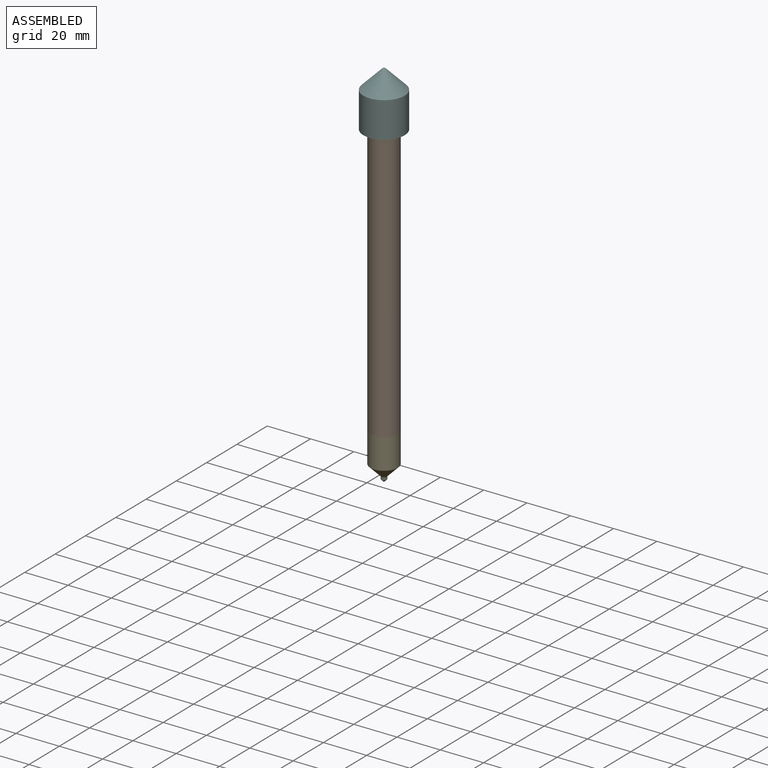
[diagram: assembled view]
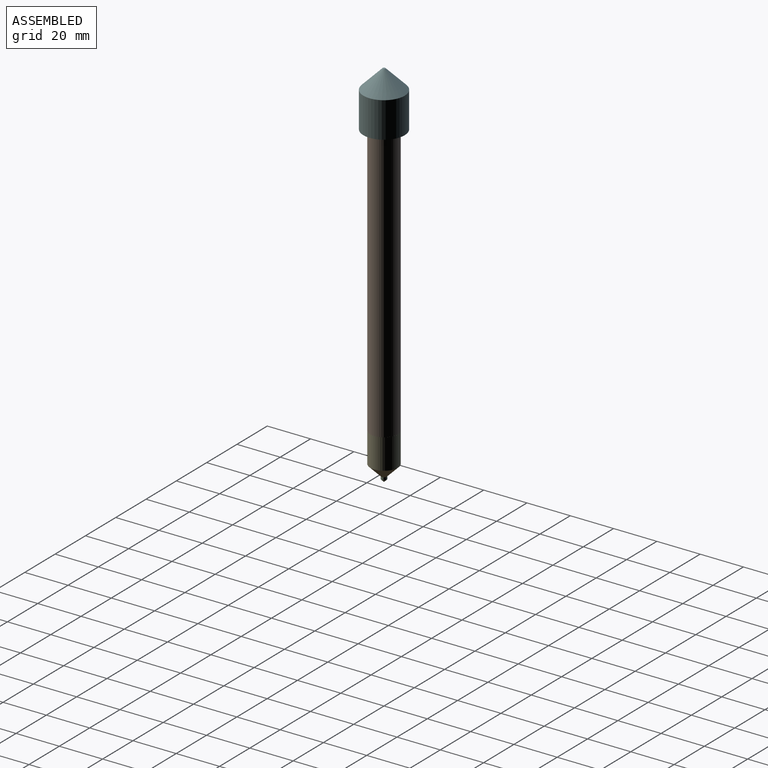
[diagram: assembled view, second angle]
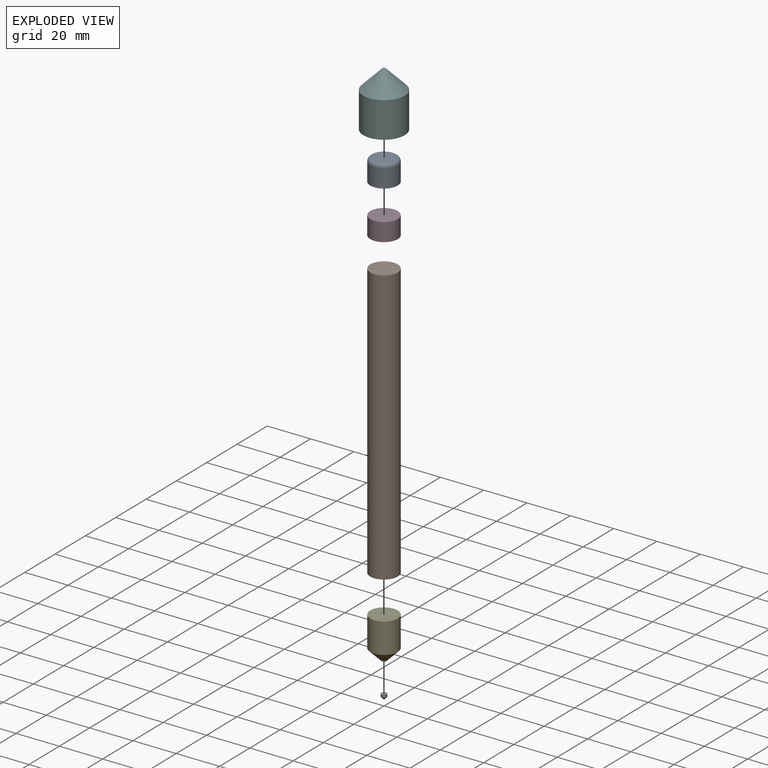
[diagram: exploded view]
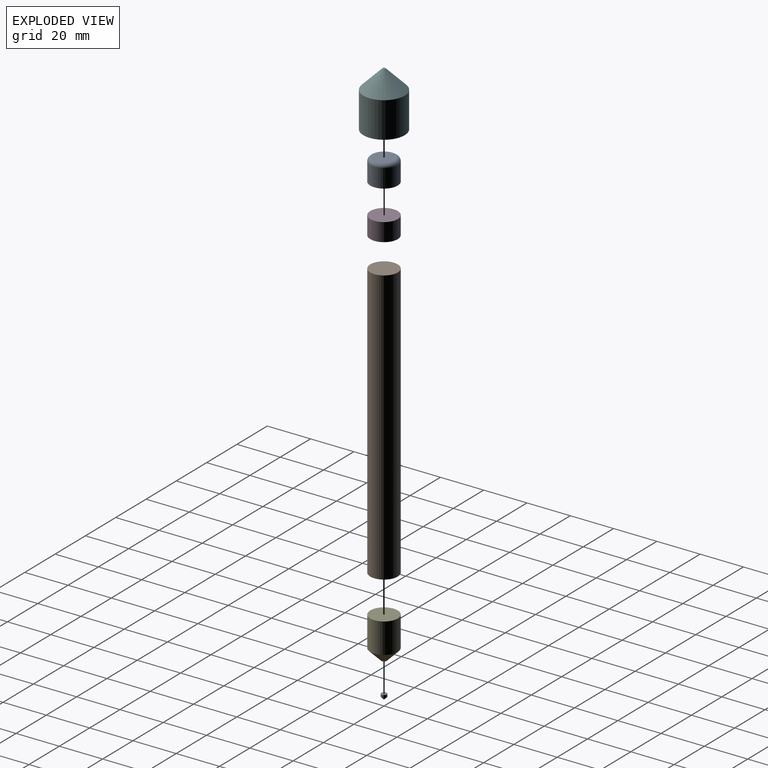
[diagram: exploded view, second angle]
ASSEMBLY  parts=6 mates=5
PART A: 4 faces, bbox 13.7x10.2x13.7 mm
  f0: cylinder r=6.35mm len=12.7mm, axis (0,1,0), area 339.5mm2, adj f1,f3
  f1: plane 12.7x12.7mm, normal (0,-1,0), area 126.7mm2, adj f0
  f2: plane 9.4x9.4mm, normal (0,1,0), area 69.4mm2, adj f3
  f3: torus R=4.7mm, axis (0,-1,0), area 93.7mm2, adj f0,f2
PART B: 3 faces, bbox 12.7x127x12.7 mm
  f0: cylinder r=6.35mm len=127mm, axis (0,1,0), area 5067.1mm2, adj f1,f2
  f1: plane 12.7x12.7mm, normal (0,-1,0), area 126.7mm2, adj f0
  f2: plane 12.7x12.7mm, normal (0,1,0), area 126.7mm2, adj f0
PART C: 4 faces, bbox 2.5x2.5x2.5 mm
  f0: cylinder r=1.27mm len=2.54mm, axis (0,1,0), area 10.1mm2, adj f2,f3
  f1: plane 0x0mm, normal (0,-1,0), area 0mm2, adj f3
  f2: plane 2.54x2.54mm, normal (0,1,0), area 5.1mm2, adj f0
  f3: cone r=0mm half-angle=45deg, axis (0,1,0), area 7.2mm2, adj f0,f1
PART D: 3 faces, bbox 12.7x8.4x12.7 mm
  f0: cylinder r=6.35mm len=12.7mm, axis (0,1,0), area 334.4mm2, adj f1,f2
  f1: plane 12.7x12.7mm, normal (0,-1,0), area 126.7mm2, adj f0
  f2: plane 12.7x12.7mm, normal (0,1,0), area 126.7mm2, adj f0
PART E: 4 faces, bbox 12.7x19.1x12.7 mm
  f0: cylinder r=6.35mm len=13.97mm, axis (0,1,0), area 557.4mm2, adj f2,f3
  f1: plane 2.54x2.54mm, normal (0,-1,0), area 5.1mm2, adj f3
  f2: plane 12.7x12.7mm, normal (0,1,0), area 126.7mm2, adj f0
  f3: cone r=1.27mm half-angle=45deg, axis (0,1,0), area 172mm2, adj f0,f1
PART F: 7 faces, bbox 19.1x25.4x19.1 mm
  f0: cylinder r=9.53mm len=19.05mm, axis (0,1,0), area 988.1mm2, adj f1,f3
  f1: plane 19.05x19.05mm, normal (0,-1,0), area 70.9mm2, adj f0,f4
  f2: plane 1.27x1.27mm, normal (0,1,0), area 1.3mm2, adj f3
  f3: cone r=9.53mm half-angle=45deg, axis (0,-1,0), area 401.3mm2, adj f0,f2
  f4: cylinder r=8.26mm len=16.51mm, axis (0,1,0), area 829.1mm2, adj f1,f6
  f5: plane 0.22x0.22mm, normal (0,-1,0), area 0mm2, adj f6
  f6: cone r=8.63mm half-angle=45deg, axis (0,-1,0), area 302.7mm2, adj f4,f5
PLACE A rot(axis=(0.58,-0.58,-0.58),120deg) t=(-40.22,0,0)mm
PLACE B rot(axis=(-0.58,-0.58,0.58),120deg) t=(0,0,-82.04)mm
PLACE C rot(axis=(0.36,0.66,0.66),140.5deg) t=(-56.26,-36.36,-164.59)mm
PLACE D rot(axis=(1,0,0),90deg) t=(0,-65.09,-10.16)mm
PLACE E rot(axis=(0,0.71,0.71),180deg) t=(0,-40.87,-145.54)mm
PLACE F rot(axis=(0,0.71,0.71),180deg) t=(0,0,5.6)mm
MATE slider F.f0 <-> A.f0  axis (0,0,-1) through (0,0,0.25)mm
MATE revolute E.f0 <-> C.f0  axis (0,0,-1) through (0,0,-164.59)mm
MATE fastened A.f0 <-> D.f0  axis (0,0,-1) through (0,0,-10.16)mm
MATE fastened E.f0 <-> B.f0  axis (0,0,1) through (0,0,-145.54)mm
MATE fastened D.f0 <-> B.f0  axis (0,0,-1) through (0,0,-18.54)mm
